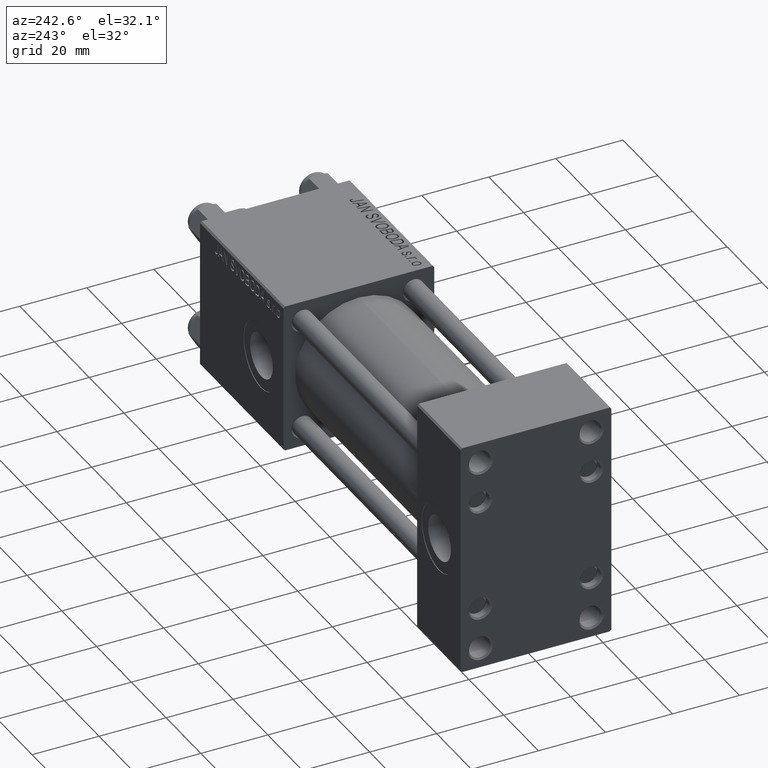
[diagram: clean part render]
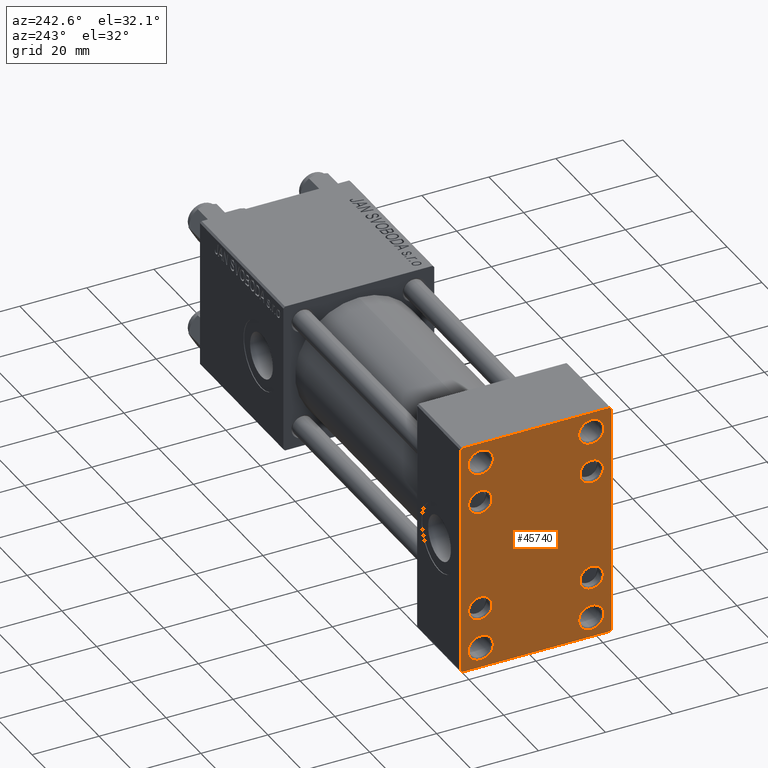
[diagram: same view with one face highlighted and labeled with its STEP entity id]
A machine part, auxiliary view. The second image highlights one B-rep face of the part: STEP entity #45740.
In plain terms, the highlighted planar face has unit normal (-1, 0, 0).
Its self-contained STEP definition (entity closure, byte-faithful):
#949 = EDGE_CURVE ( 'NONE', #23097, #6992, #4344, .T. ) ;
#1340 = EDGE_CURVE ( 'NONE', #47961, #25538, #1762, .T. ) ;
#1423 = EDGE_CURVE ( 'NONE', #43033, #13945, #5791, .T. ) ;
#1762 = CIRCLE ( 'NONE', #13886, 3.749999999999989342 ) ;
#1833 = VECTOR ( 'NONE', #45619, 999.9999999999998863 ) ;
#1922 = EDGE_CURVE ( 'NONE', #44806, #16345, #27176, .T. ) ;
#2545 = CARTESIAN_POINT ( 'NONE',  ( 0.000000000000000000, -16.59999999999999076, -16.60000000000000853 ) ) ;
#2670 = CARTESIAN_POINT ( 'NONE',  ( 0.000000000000000000, 16.59999999999999787, -16.60000000000000497 ) ) ;
#2708 = ORIENTED_EDGE ( 'NONE', *, *, #46136, .T. ) ;
#2815 = ORIENTED_EDGE ( 'NONE', *, *, #949, .T. ) ;
#3054 = EDGE_CURVE ( 'NONE', #7105, #44806, #18839, .T. ) ;
#3400 = ORIENTED_EDGE ( 'NONE', *, *, #47651, .T. ) ;
#3450 = ORIENTED_EDGE ( 'NONE', *, *, #9032, .T. ) ;
#3888 = EDGE_LOOP ( 'NONE', ( #33671, #8274 ) ) ;
#3939 = ORIENTED_EDGE ( 'NONE', *, *, #38950, .T. ) ;
#4285 = DIRECTION ( 'NONE',  ( 1.000000000000000000, -0.000000000000000000, 0.000000000000000000 ) ) ;
#4329 = CARTESIAN_POINT ( 'NONE',  ( 0.000000000000000000, -16.50000000000000711, -29.00000000000000711 ) ) ;
#4344 = LINE ( 'NONE', #42260, #36471 ) ;
#4448 = CARTESIAN_POINT ( 'NONE',  ( 0.000000000000000000, -22.49999999999999645, -34.50000000000000000 ) ) ;
#4527 = CARTESIAN_POINT ( 'NONE',  ( -0.000000000000000000, -28.50000000000015632, 28.49999999999976197 ) ) ;
#5209 = CIRCLE ( 'NONE', #39882, 3.750000000000013767 ) ;
#5772 = DIRECTION ( 'NONE',  ( 0.000000000000000000, 0.000000000000000000, 1.000000000000000000 ) ) ;
#5791 = CIRCLE ( 'NONE', #33217, 3.750000000000013767 ) ;
#5820 = DIRECTION ( 'NONE',  ( 0.000000000000000000, 0.000000000000000000, 1.000000000000000000 ) ) ;
#6727 = AXIS2_PLACEMENT_3D ( 'NONE', #36494, #48843, #48353 ) ;
#6803 = CIRCLE ( 'NONE', #49550, 3.499999999999996003 ) ;
#6905 = CARTESIAN_POINT ( 'NONE',  ( 0.000000000000000000, 0.000000000000000000, 0.000000000000000000 ) ) ;
#6992 = VERTEX_POINT ( 'NONE', #4448 ) ;
#7090 = CARTESIAN_POINT ( 'NONE',  ( 0.000000000000000000, -16.50000000000000711, 28.99999999999998934 ) ) ;
#7105 = VERTEX_POINT ( 'NONE', #25407 ) ;
#7280 = CARTESIAN_POINT ( 'NONE',  ( 0.000000000000000000, 16.49999999999999289, 32.75000000000000711 ) ) ;
#7605 = AXIS2_PLACEMENT_3D ( 'NONE', #2545, #26044, #45496 ) ;
#8215 = ORIENTED_EDGE ( 'NONE', *, *, #36262, .F. ) ;
#8271 = LINE ( 'NONE', #32007, #30097 ) ;
#8274 = ORIENTED_EDGE ( 'NONE', *, *, #26785, .T. ) ;
#8447 = CARTESIAN_POINT ( 'NONE',  ( 0.000000000000000000, 16.49999999999999289, 28.99999999999998934 ) ) ;
#8995 = ORIENTED_EDGE ( 'NONE', *, *, #49184, .T. ) ;
#9032 = EDGE_CURVE ( 'NONE', #15617, #22526, #21388, .T. ) ;
#9147 = CARTESIAN_POINT ( 'NONE',  ( 0.000000000000000000, 16.59999999999999787, 16.60000000000000497 ) ) ;
#10039 = ORIENTED_EDGE ( 'NONE', *, *, #36812, .T. ) ;
#10091 = ORIENTED_EDGE ( 'NONE', *, *, #1423, .T. ) ;
#10457 = CARTESIAN_POINT ( 'NONE',  ( 0.000000000000000000, -16.59999999999999076, 13.10000000000001030 ) ) ;
#11137 = AXIS2_PLACEMENT_3D ( 'NONE', #47971, #44209, #5772 ) ;
#11469 = ORIENTED_EDGE ( 'NONE', *, *, #3054, .T. ) ;
#11522 = VERTEX_POINT ( 'NONE', #30348 ) ;
#11691 = FACE_BOUND ( 'NONE', #49559, .T. ) ;
#11836 = CARTESIAN_POINT ( 'NONE',  ( 0.000000000000000000, 22.50000000000000355, 35.00000000000000711 ) ) ;
#11932 = VERTEX_POINT ( 'NONE', #40554 ) ;
#12040 = AXIS2_PLACEMENT_3D ( 'NONE', #21937, #29763, #41145 ) ;
#12105 = ORIENTED_EDGE ( 'NONE', *, *, #48119, .T. ) ;
#12142 = AXIS2_PLACEMENT_3D ( 'NONE', #18110, #41342, #37562 ) ;
#12280 = CARTESIAN_POINT ( 'NONE',  ( 0.000000000000000000, 16.49999999999999289, -29.00000000000000711 ) ) ;
#12405 = CIRCLE ( 'NONE', #6727, 3.499999999999996003 ) ;
#12728 = ORIENTED_EDGE ( 'NONE', *, *, #25061, .F. ) ;
#13886 = AXIS2_PLACEMENT_3D ( 'NONE', #7090, #4285, #15942 ) ;
#13945 = VERTEX_POINT ( 'NONE', #20133 ) ;
#14201 = DIRECTION ( 'NONE',  ( 1.000000000000000000, -0.000000000000000000, 0.000000000000000000 ) ) ;
#14396 = CIRCLE ( 'NONE', #11137, 3.499999999999996003 ) ;
#14611 = ORIENTED_EDGE ( 'NONE', *, *, #23607, .T. ) ;
#14696 = CARTESIAN_POINT ( 'NONE',  ( 0.000000000000000000, 16.49999999999999289, -25.24999999999999289 ) ) ;
#14890 = AXIS2_PLACEMENT_3D ( 'NONE', #4329, #43505, #32364 ) ;
#15152 = ORIENTED_EDGE ( 'NONE', *, *, #26389, .T. ) ;
#15496 = FACE_BOUND ( 'NONE', #47276, .T. ) ;
#15617 = VERTEX_POINT ( 'NONE', #34910 ) ;
#15840 = CARTESIAN_POINT ( 'NONE',  ( 0.000000000000000000, -16.59999999999999076, -20.10000000000000497 ) ) ;
#15942 = DIRECTION ( 'NONE',  ( 0.000000000000000000, 0.000000000000000000, 1.000000000000000000 ) ) ;
#16345 = VERTEX_POINT ( 'NONE', #47153 ) ;
#16352 = VECTOR ( 'NONE', #19593, 1000.000000000000000 ) ;
#16434 = CARTESIAN_POINT ( 'NONE',  ( 0.000000000000000000, -21.99999999999998934, -35.00000000000000000 ) ) ;
#16485 = AXIS2_PLACEMENT_3D ( 'NONE', #27755, #28246, #23727 ) ;
#16526 = CARTESIAN_POINT ( 'NONE',  ( 0.000000000000000000, 22.50000000000000355, -34.99999999999999289 ) ) ;
#17019 = LINE ( 'NONE', #16526, #39748 ) ;
#17732 = DIRECTION ( 'NONE',  ( 1.000000000000000000, -0.000000000000000000, 0.000000000000000000 ) ) ;
#18110 = CARTESIAN_POINT ( 'NONE',  ( 0.000000000000000000, -16.59999999999999076, 16.60000000000000853 ) ) ;
#18239 = DIRECTION ( 'NONE',  ( 0.000000000000000000, 0.000000000000000000, 1.000000000000000000 ) ) ;
#18584 = VERTEX_POINT ( 'NONE', #39011 ) ;
#18839 = LINE ( 'NONE', #40393, #1833 ) ;
#18886 = DIRECTION ( 'NONE',  ( 1.000000000000000000, -0.000000000000000000, 0.000000000000000000 ) ) ;
#19051 = PLANE ( 'NONE',  #30674 ) ;
#19059 = CIRCLE ( 'NONE', #29526, 3.499999999999996003 ) ;
#19423 = ORIENTED_EDGE ( 'NONE', *, *, #42085, .T. ) ;
#19593 = DIRECTION ( 'NONE',  ( 0.000000000000000000, 0.000000000000000000, -1.000000000000000000 ) ) ;
#19675 = DIRECTION ( 'NONE',  ( 0.000000000000000000, -1.000000000000000000, -1.541976423090495387E-16 ) ) ;
#19902 = DIRECTION ( 'NONE',  ( 0.000000000000000000, 0.000000000000000000, -1.000000000000000000 ) ) ;
#20063 = DIRECTION ( 'NONE',  ( 0.000000000000000000, -1.000000000000000000, -1.541976423090495387E-16 ) ) ;
#20133 = CARTESIAN_POINT ( 'NONE',  ( 0.000000000000000000, -16.50000000000000711, -32.75000000000002132 ) ) ;
#21201 = VERTEX_POINT ( 'NONE', #15840 ) ;
#21310 = CIRCLE ( 'NONE', #30170, 3.749999999999989342 ) ;
#21388 = CIRCLE ( 'NONE', #27841, 3.750000000000017319 ) ;
#21937 = CARTESIAN_POINT ( 'NONE',  ( 0.000000000000000000, 16.49999999999999289, -29.00000000000000711 ) ) ;
#21973 = ORIENTED_EDGE ( 'NONE', *, *, #30659, .T. ) ;
#22526 = VERTEX_POINT ( 'NONE', #7280 ) ;
#23068 = CARTESIAN_POINT ( 'NONE',  ( 0.000000000000000000, -16.59999999999999076, -13.10000000000001030 ) ) ;
#23069 = DIRECTION ( 'NONE',  ( 0.000000000000000000, -0.7071067811865426878, 0.7071067811865524577 ) ) ;
#23077 = FACE_BOUND ( 'NONE', #35339, .T. ) ;
#23097 = VERTEX_POINT ( 'NONE', #16434 ) ;
#23607 = EDGE_CURVE ( 'NONE', #29409, #11522, #6803, .T. ) ;
#23727 = DIRECTION ( 'NONE',  ( 0.000000000000000000, 0.000000000000000000, 1.000000000000000000 ) ) ;
#25057 = CARTESIAN_POINT ( 'NONE',  ( 0.000000000000000000, -22.49999999999999645, 34.50000000000000000 ) ) ;
#25061 = EDGE_CURVE ( 'NONE', #40767, #6992, #8271, .T. ) ;
#25216 = AXIS2_PLACEMENT_3D ( 'NONE', #28619, #39995, #36207 ) ;
#25407 = CARTESIAN_POINT ( 'NONE',  ( 0.000000000000000000, 22.00000000000000355, 35.00000000000000711 ) ) ;
#25513 = CARTESIAN_POINT ( 'NONE',  ( 0.000000000000000000, -16.59999999999999076, 20.10000000000000853 ) ) ;
#25538 = VERTEX_POINT ( 'NONE', #45300 ) ;
#26044 = DIRECTION ( 'NONE',  ( 1.000000000000000000, -0.000000000000000000, 0.000000000000000000 ) ) ;
#26183 = DIRECTION ( 'NONE',  ( 1.000000000000000000, -0.000000000000000000, 0.000000000000000000 ) ) ;
#26365 = FACE_BOUND ( 'NONE', #48035, .T. ) ;
#26389 = EDGE_CURVE ( 'NONE', #11522, #29409, #12405, .T. ) ;
#26439 = CARTESIAN_POINT ( 'NONE',  ( 0.000000000000000000, 16.59999999999999787, 13.10000000000000675 ) ) ;
#26557 = CARTESIAN_POINT ( 'NONE',  ( 0.000000000000000000, -16.50000000000000711, 28.99999999999998934 ) ) ;
#26785 = EDGE_CURVE ( 'NONE', #21201, #44511, #38269, .T. ) ;
#27176 = LINE ( 'NONE', #43089, #16352 ) ;
#27279 = LINE ( 'NONE', #4527, #30281 ) ;
#27638 = EDGE_CURVE ( 'NONE', #25538, #47961, #21310, .T. ) ;
#27685 = DIRECTION ( 'NONE',  ( 0.000000000000000000, 0.000000000000000000, 1.000000000000000000 ) ) ;
#27755 = CARTESIAN_POINT ( 'NONE',  ( 0.000000000000000000, -16.59999999999999076, 16.60000000000000853 ) ) ;
#27841 = AXIS2_PLACEMENT_3D ( 'NONE', #8447, #18886, #31436 ) ;
#28183 = DIRECTION ( 'NONE',  ( 1.000000000000000000, -0.000000000000000000, 0.000000000000000000 ) ) ;
#28246 = DIRECTION ( 'NONE',  ( 1.000000000000000000, -0.000000000000000000, 0.000000000000000000 ) ) ;
#28545 = DIRECTION ( 'NONE',  ( -0.000000000000000000, -0.7071067811865525687, -0.7071067811865425767 ) ) ;
#28619 = CARTESIAN_POINT ( 'NONE',  ( 0.000000000000000000, 16.49999999999999289, 28.99999999999998934 ) ) ;
#28677 = EDGE_CURVE ( 'NONE', #35081, #37808, #5209, .T. ) ;
#29207 = ORIENTED_EDGE ( 'NONE', *, *, #1340, .T. ) ;
#29409 = VERTEX_POINT ( 'NONE', #48492 ) ;
#29526 = AXIS2_PLACEMENT_3D ( 'NONE', #44997, #17732, #5820 ) ;
#29665 = VECTOR ( 'NONE', #28545, 999.9999999999998863 ) ;
#29763 = DIRECTION ( 'NONE',  ( 1.000000000000000000, -0.000000000000000000, 0.000000000000000000 ) ) ;
#30097 = VECTOR ( 'NONE', #19902, 1000.000000000000000 ) ;
#30170 = AXIS2_PLACEMENT_3D ( 'NONE', #26557, #49046, #18239 ) ;
#30281 = VECTOR ( 'NONE', #46965, 1000.000000000000000 ) ;
#30348 = CARTESIAN_POINT ( 'NONE',  ( 0.000000000000000000, 16.59999999999999787, -13.10000000000000675 ) ) ;
#30659 = EDGE_CURVE ( 'NONE', #40767, #18584, #27279, .T. ) ;
#30674 = AXIS2_PLACEMENT_3D ( 'NONE', #6905, #46060, #42527 ) ;
#31436 = DIRECTION ( 'NONE',  ( 0.000000000000000000, 0.000000000000000000, 1.000000000000000000 ) ) ;
#31476 = EDGE_CURVE ( 'NONE', #44511, #21201, #19059, .T. ) ;
#31782 = CIRCLE ( 'NONE', #14890, 3.750000000000013767 ) ;
#32007 = CARTESIAN_POINT ( 'NONE',  ( 0.000000000000000000, -22.49999999999999645, 35.00000000000000000 ) ) ;
#32364 = DIRECTION ( 'NONE',  ( 0.000000000000000000, 0.000000000000000000, 1.000000000000000000 ) ) ;
#33217 = AXIS2_PLACEMENT_3D ( 'NONE', #49985, #34817, #41652 ) ;
#33218 = CARTESIAN_POINT ( 'NONE',  ( 0.000000000000000000, -16.50000000000000711, 25.25000000000000000 ) ) ;
#33592 = ORIENTED_EDGE ( 'NONE', *, *, #37634, .T. ) ;
#33671 = ORIENTED_EDGE ( 'NONE', *, *, #31476, .T. ) ;
#33940 = FACE_BOUND ( 'NONE', #39443, .T. ) ;
#34047 = VERTEX_POINT ( 'NONE', #43760 ) ;
#34077 = CIRCLE ( 'NONE', #25216, 3.750000000000017319 ) ;
#34591 = AXIS2_PLACEMENT_3D ( 'NONE', #9147, #14201, #40473 ) ;
#34817 = DIRECTION ( 'NONE',  ( 1.000000000000000000, -0.000000000000000000, 0.000000000000000000 ) ) ;
#34910 = CARTESIAN_POINT ( 'NONE',  ( 0.000000000000000000, 16.49999999999999289, 25.24999999999997513 ) ) ;
#35081 = VERTEX_POINT ( 'NONE', #43959 ) ;
#35291 = VERTEX_POINT ( 'NONE', #25513 ) ;
#35339 = EDGE_LOOP ( 'NONE', ( #35819, #29207 ) ) ;
#35611 = CARTESIAN_POINT ( 'NONE',  ( 0.000000000000000000, 22.50000000000000355, 34.49999999999999289 ) ) ;
#35819 = ORIENTED_EDGE ( 'NONE', *, *, #27638, .T. ) ;
#35825 = CIRCLE ( 'NONE', #16485, 3.499999999999996003 ) ;
#36207 = DIRECTION ( 'NONE',  ( 0.000000000000000000, 0.000000000000000000, 1.000000000000000000 ) ) ;
#36262 = EDGE_CURVE ( 'NONE', #7105, #18584, #38866, .T. ) ;
#36344 = CIRCLE ( 'NONE', #12142, 3.499999999999996003 ) ;
#36356 = ORIENTED_EDGE ( 'NONE', *, *, #48622, .T. ) ;
#36471 = VECTOR ( 'NONE', #23069, 1000.000000000000000 ) ;
#36494 = CARTESIAN_POINT ( 'NONE',  ( 0.000000000000000000, 16.59999999999999787, -16.60000000000000497 ) ) ;
#36812 = EDGE_CURVE ( 'NONE', #38081, #34047, #14396, .T. ) ;
#36973 = VECTOR ( 'NONE', #19675, 1000.000000000000000 ) ;
#37387 = VERTEX_POINT ( 'NONE', #10457 ) ;
#37562 = DIRECTION ( 'NONE',  ( 0.000000000000000000, 0.000000000000000000, 1.000000000000000000 ) ) ;
#37634 = EDGE_CURVE ( 'NONE', #34047, #38081, #47480, .T. ) ;
#37808 = VERTEX_POINT ( 'NONE', #14696 ) ;
#38081 = VERTEX_POINT ( 'NONE', #26439 ) ;
#38238 = FACE_OUTER_BOUND ( 'NONE', #46052, .T. ) ;
#38269 = CIRCLE ( 'NONE', #7605, 3.499999999999996003 ) ;
#38857 = EDGE_LOOP ( 'NONE', ( #3400, #3450 ) ) ;
#38866 = LINE ( 'NONE', #11836, #36973 ) ;
#38950 = EDGE_CURVE ( 'NONE', #16345, #11932, #44716, .T. ) ;
#39011 = CARTESIAN_POINT ( 'NONE',  ( 0.000000000000000000, -21.99999999999998934, 35.00000000000000000 ) ) ;
#39443 = EDGE_LOOP ( 'NONE', ( #2708, #36356 ) ) ;
#39748 = VECTOR ( 'NONE', #20063, 1000.000000000000000 ) ;
#39882 = AXIS2_PLACEMENT_3D ( 'NONE', #12280, #28183, #27685 ) ;
#39995 = DIRECTION ( 'NONE',  ( 1.000000000000000000, -0.000000000000000000, 0.000000000000000000 ) ) ;
#40393 = CARTESIAN_POINT ( 'NONE',  ( 0.000000000000000000, 28.50000000000030909, 28.49999999999952038 ) ) ;
#40473 = DIRECTION ( 'NONE',  ( 0.000000000000000000, 0.000000000000000000, 1.000000000000000000 ) ) ;
#40554 = CARTESIAN_POINT ( 'NONE',  ( 0.000000000000000000, 21.99999999999999645, -34.99999999999999289 ) ) ;
#40675 = CARTESIAN_POINT ( 'NONE',  ( 0.000000000000000000, 28.49999999999984013, -28.50000000000024158 ) ) ;
#40767 = VERTEX_POINT ( 'NONE', #25057 ) ;
#41145 = DIRECTION ( 'NONE',  ( 0.000000000000000000, 0.000000000000000000, 1.000000000000000000 ) ) ;
#41342 = DIRECTION ( 'NONE',  ( 1.000000000000000000, -0.000000000000000000, 0.000000000000000000 ) ) ;
#41530 = FACE_BOUND ( 'NONE', #38857, .T. ) ;
#41599 = DIRECTION ( 'NONE',  ( 0.000000000000000000, 0.000000000000000000, 1.000000000000000000 ) ) ;
#41652 = DIRECTION ( 'NONE',  ( 0.000000000000000000, 0.000000000000000000, 1.000000000000000000 ) ) ;
#41780 = FACE_BOUND ( 'NONE', #44288, .T. ) ;
#42085 = EDGE_CURVE ( 'NONE', #37808, #35081, #42701, .T. ) ;
#42260 = CARTESIAN_POINT ( 'NONE',  ( 0.000000000000000000, -28.50000000000015632, -28.49999999999976197 ) ) ;
#42527 = DIRECTION ( 'NONE',  ( -0.000000000000000000, 0.000000000000000000, 1.000000000000000000 ) ) ;
#42701 = CIRCLE ( 'NONE', #12040, 3.750000000000013767 ) ;
#43033 = VERTEX_POINT ( 'NONE', #49966 ) ;
#43089 = CARTESIAN_POINT ( 'NONE',  ( 0.000000000000000000, 22.50000000000000355, 35.00000000000000711 ) ) ;
#43505 = DIRECTION ( 'NONE',  ( 1.000000000000000000, -0.000000000000000000, 0.000000000000000000 ) ) ;
#43760 = CARTESIAN_POINT ( 'NONE',  ( 0.000000000000000000, 16.59999999999999787, 20.10000000000000142 ) ) ;
#43959 = CARTESIAN_POINT ( 'NONE',  ( 0.000000000000000000, 16.49999999999999289, -32.75000000000002132 ) ) ;
#44209 = DIRECTION ( 'NONE',  ( 1.000000000000000000, -0.000000000000000000, 0.000000000000000000 ) ) ;
#44288 = EDGE_LOOP ( 'NONE', ( #33592, #10039 ) ) ;
#44511 = VERTEX_POINT ( 'NONE', #23068 ) ;
#44716 = LINE ( 'NONE', #40675, #29665 ) ;
#44806 = VERTEX_POINT ( 'NONE', #35611 ) ;
#44997 = CARTESIAN_POINT ( 'NONE',  ( 0.000000000000000000, -16.59999999999999076, -16.60000000000000853 ) ) ;
#45300 = CARTESIAN_POINT ( 'NONE',  ( 0.000000000000000000, -16.50000000000000711, 32.74999999999997868 ) ) ;
#45496 = DIRECTION ( 'NONE',  ( 0.000000000000000000, 0.000000000000000000, 1.000000000000000000 ) ) ;
#45619 = DIRECTION ( 'NONE',  ( 0.000000000000000000, 0.7071067811865376918, -0.7071067811865574537 ) ) ;
#45709 = ORIENTED_EDGE ( 'NONE', *, *, #28677, .T. ) ;
#45740 = ADVANCED_FACE ( 'NONE', ( #41530, #23077, #26365, #11691, #33940, #49100, #15496, #41780, #38238 ), #19051, .T. ) ;
#45776 = ORIENTED_EDGE ( 'NONE', *, *, #1922, .T. ) ;
#46052 = EDGE_LOOP ( 'NONE', ( #45776, #3939, #12105, #2815, #12728, #21973, #8215, #11469 ) ) ;
#46060 = DIRECTION ( 'NONE',  ( -1.000000000000000000, 0.000000000000000000, -0.000000000000000000 ) ) ;
#46136 = EDGE_CURVE ( 'NONE', #35291, #37387, #36344, .T. ) ;
#46965 = DIRECTION ( 'NONE',  ( -0.000000000000000000, 0.7071067811865426878, 0.7071067811865524577 ) ) ;
#47153 = CARTESIAN_POINT ( 'NONE',  ( 0.000000000000000000, 22.50000000000000355, -34.49999999999999289 ) ) ;
#47276 = EDGE_LOOP ( 'NONE', ( #15152, #14611 ) ) ;
#47480 = CIRCLE ( 'NONE', #34591, 3.499999999999996003 ) ;
#47651 = EDGE_CURVE ( 'NONE', #22526, #15617, #34077, .T. ) ;
#47961 = VERTEX_POINT ( 'NONE', #33218 ) ;
#47971 = CARTESIAN_POINT ( 'NONE',  ( 0.000000000000000000, 16.59999999999999787, 16.60000000000000497 ) ) ;
#48035 = EDGE_LOOP ( 'NONE', ( #10091, #8995 ) ) ;
#48119 = EDGE_CURVE ( 'NONE', #11932, #23097, #17019, .T. ) ;
#48353 = DIRECTION ( 'NONE',  ( 0.000000000000000000, 0.000000000000000000, 1.000000000000000000 ) ) ;
#48492 = CARTESIAN_POINT ( 'NONE',  ( 0.000000000000000000, 16.59999999999999787, -20.10000000000000142 ) ) ;
#48622 = EDGE_CURVE ( 'NONE', #37387, #35291, #35825, .T. ) ;
#48843 = DIRECTION ( 'NONE',  ( 1.000000000000000000, -0.000000000000000000, 0.000000000000000000 ) ) ;
#49046 = DIRECTION ( 'NONE',  ( 1.000000000000000000, -0.000000000000000000, 0.000000000000000000 ) ) ;
#49100 = FACE_BOUND ( 'NONE', #3888, .T. ) ;
#49184 = EDGE_CURVE ( 'NONE', #13945, #43033, #31782, .T. ) ;
#49550 = AXIS2_PLACEMENT_3D ( 'NONE', #2670, #26183, #41599 ) ;
#49559 = EDGE_LOOP ( 'NONE', ( #19423, #45709 ) ) ;
#49966 = CARTESIAN_POINT ( 'NONE',  ( 0.000000000000000000, -16.50000000000000711, -25.24999999999999289 ) ) ;
#49985 = CARTESIAN_POINT ( 'NONE',  ( 0.000000000000000000, -16.50000000000000711, -29.00000000000000711 ) ) ;